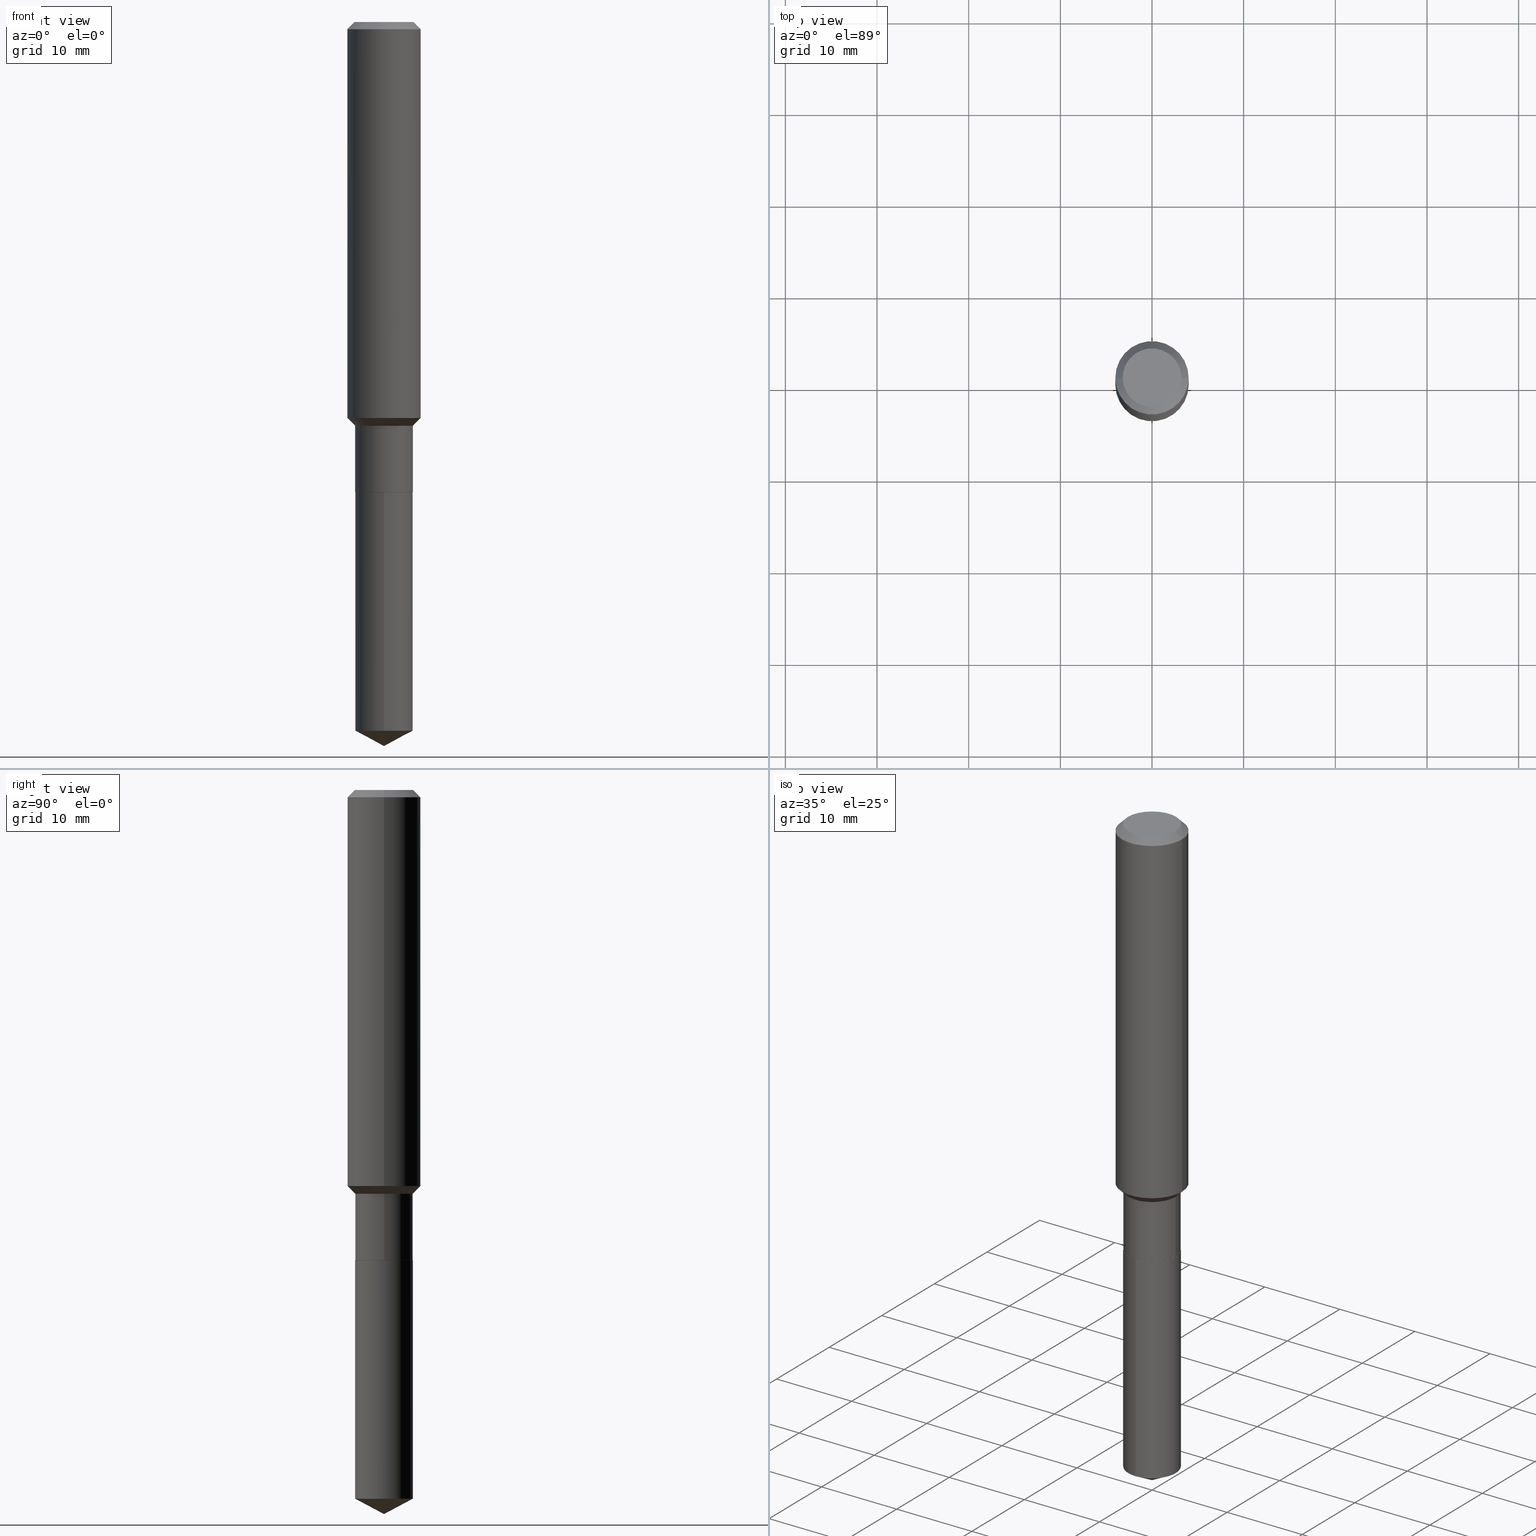
[diagram: canonical four-view strip — front | top / right | iso, engineering-drawing reading convention]
A machine part, canonical four-view strip (front | top / right | iso — engineering-drawing reading convention). The complete STEP part file that produces these views, byte-faithful:
ISO-10303-21;
HEADER;
FILE_DESCRIPTION (( 'STEP AP203' ),
    '1' );
FILE_NAME ('64633.STEP',
    '2024-04-24T18:30:29',
    ( '' ),
    ( '' ),
    'SwSTEP 2.0',
    'SolidWorks 2023',
    '' );
FILE_SCHEMA (( 'CONFIG_CONTROL_DESIGN' ));
ENDSEC;

DATA;
#1 = VECTOR ( 'NONE', #429, 39.37007874015748854 ) ;
#2 = CC_DESIGN_SECURITY_CLASSIFICATION ( #304, ( #251 ) ) ;
#3 = PERSON_AND_ORGANIZATION ( #315, #438 ) ;
#4 = EDGE_LOOP ( 'NONE', ( #136, #41, #195 ) ) ;
#5 = CARTESIAN_POINT ( 'NONE',  ( 4.937646066568409466E-29, -7.049649971258195757E-15, -2.019099999999999895 ) ) ;
#6 = ORIENTED_EDGE ( 'NONE', *, *, #278, .F. ) ;
#7 = PLANE ( 'NONE',  #177 ) ;
#8 = DIRECTION ( 'NONE',  ( -6.165590087286832874E-15, -0.8829475928589261002, 0.4694715627858920826 ) ) ;
#9 = CARTESIAN_POINT ( 'NONE',  ( 0.1260000000000000009, -1.027466422270894443E-15, 3.860086710919128072E-18 ) ) ;
#10 = AXIS2_PLACEMENT_3D ( 'NONE', #29, #425, #32 ) ;
#11 = VERTEX_POINT ( 'NONE', #271 ) ;
#12 = DIRECTION ( 'NONE',  ( -6.982962677686265922E-15, -1.000000000000000000, 4.406206441393973340E-15 ) ) ;
#13 = DIRECTION ( 'NONE',  ( -2.445468806185136597E-29, 3.491481338843145583E-15, 1.000000000000000000 ) ) ;
#14 = LINE ( 'NONE', #230, #53 ) ;
#15 = ORIENTED_EDGE ( 'NONE', *, *, #369, .T. ) ;
#16 = ORIENTED_EDGE ( 'NONE', *, *, #290, .T. ) ;
#17 = DIRECTION ( 'NONE',  ( 0.7071067811866320607, -2.468850131083142557E-15, 0.7071067811864629737 ) ) ;
#18 = DIRECTION ( 'NONE',  ( 1.000000000000000000, -6.982962677686265133E-15, 0.000000000000000000 ) ) ;
#19 = ORIENTED_EDGE ( 'NONE', *, *, #361, .F. ) ;
#20 = DIRECTION ( 'NONE',  ( 1.000000000000000000, -6.982962677686267499E-15, 4.876176775795936353E-29 ) ) ;
#21 = CARTESIAN_POINT ( 'NONE',  ( -0.1239999999999999991, 8.810729923425242242E-16, -6.099479511916082446E-30 ) ) ;
#22 = CC_DESIGN_APPROVAL ( #217, ( #251 ) ) ;
#23 = DIRECTION ( 'NONE',  ( -6.982962677686266711E-15, -1.000000000000000000, 3.541896320645563630E-15 ) ) ;
#24 = EDGE_CURVE ( 'NONE', #393, #180, #60, .T. ) ;
#25 = ADVANCED_FACE ( 'NONE', ( #378 ), #42, .T. ) ;
#26 = CARTESIAN_POINT ( 'NONE',  ( 4.938868800971501707E-29, -7.051395711927616472E-15, -2.019600000000000062 ) ) ;
#27 = EDGE_CURVE ( 'NONE', #77, #410, #321, .T. ) ;
#28 = CARTESIAN_POINT ( 'NONE',  ( 7.703226739483228723E-31, -1.099816621735597661E-16, -0.03150000000000019451 ) ) ;
#29 = CARTESIAN_POINT ( 'NONE',  ( -9.439721640706201686E-47, 1.347742071746726764E-32, 3.860086710912459732E-18 ) ) ;
#30 = EDGE_LOOP ( 'NONE', ( #63, #82, #411, #101 ) ) ;
#31 = APPROVAL ( #75, 'UNSPECIFIED' ) ;
#32 = DIRECTION ( 'NONE',  ( 1.000000000000000000, -6.982962677686265922E-15, 4.876281427513067258E-29 ) ) ;
#33 = VECTOR ( 'NONE', #94, 39.37007874015748143 ) ;
#34 = LOCAL_TIME ( 14, 30, 29.00000000000000000, #150 ) ;
#35 = ORIENTED_EDGE ( 'NONE', *, *, #56, .F. ) ;
#36 = CALENDAR_DATE ( 2024, 24, 4 ) ;
#37 = EDGE_LOOP ( 'NONE', ( #189, #474, #329, #299 ) ) ;
#38 = PERSON_AND_ORGANIZATION ( #315, #438 ) ;
#39 =( GEOMETRIC_REPRESENTATION_CONTEXT ( 3 ) GLOBAL_UNCERTAINTY_ASSIGNED_CONTEXT ( ( #357 ) ) GLOBAL_UNIT_ASSIGNED_CONTEXT ( ( #143, #446, #220 ) ) REPRESENTATION_CONTEXT ( 'NONE', 'WORKASPACE' ) );
#40 = CC_DESIGN_PERSON_AND_ORGANIZATION_ASSIGNMENT ( #3, #72, ( #304 ) ) ;
#41 = ORIENTED_EDGE ( 'NONE', *, *, #380, .T. ) ;
#42 = CYLINDRICAL_SURFACE ( 'NONE', #111, 0.1575000000000000844 ) ;
#43 = LINE ( 'NONE', #314, #445 ) ;
#44 = ADVANCED_FACE ( 'NONE', ( #268 ), #310, .T. ) ;
#45 = DIRECTION ( 'NONE',  ( 0.7071067811865493491, -2.468850131082275993E-15, 0.7071067811865457964 ) ) ;
#46 = CARTESIAN_POINT ( 'NONE',  ( 0.000000000000000000, 0.000000000000000000, 0.000000000000000000 ) ) ;
#47 = CIRCLE ( 'NONE', #487, 0.1239999999999999991 ) ;
#48 = CC_DESIGN_PERSON_AND_ORGANIZATION_ASSIGNMENT ( #156, #372, ( #251 ) ) ;
#49 = DIRECTION ( 'NONE',  ( -6.982962677686265922E-15, -1.000000000000000000, 4.406206441393973340E-15 ) ) ;
#50 = DIRECTION ( 'NONE',  ( -0.7071067811865451302, 2.468850131082231817E-15, -0.7071067811865499042 ) ) ;
#51 = DIRECTION ( 'NONE',  ( -2.445312113218767742E-29, 3.491705732089395604E-15, 1.000000000000000000 ) ) ;
#52 = DATE_TIME_ROLE ( 'creation_date' ) ;
#53 = VECTOR ( 'NONE', #50, 39.37007874015748143 ) ;
#54 = DIRECTION ( 'NONE',  ( -2.445468806185136597E-29, 3.491481338843145583E-15, 1.000000000000000000 ) ) ;
#55 = CARTESIAN_POINT ( 'NONE',  ( 8.810729923425734294E-16, 0.1239999999999929492, -2.019600000000000506 ) ) ;
#56 = EDGE_CURVE ( 'NONE', #11, #371, #353, .T. ) ;
#57 = DIRECTION ( 'NONE',  ( -2.445468806185136877E-29, 3.491481338843145188E-15, 1.000000000000000000 ) ) ;
#58 = CARTESIAN_POINT ( 'NONE',  ( -4.719860820353100843E-47, 6.738710358733633822E-33, 1.930043355456229866E-18 ) ) ;
#59 = FACE_OUTER_BOUND ( 'NONE', #424, .T. ) ;
#60 = CIRCLE ( 'NONE', #210, 0.1239999999999999991 ) ;
#61 = AXIS2_PLACEMENT_3D ( 'NONE', #342, #203, #73 ) ;
#62 = VECTOR ( 'NONE', #258, 39.37007874015748143 ) ;
#63 = ORIENTED_EDGE ( 'NONE', *, *, #89, .F. ) ;
#64 = EDGE_LOOP ( 'NONE', ( #312, #460, #214, #204 ) ) ;
#65 = ADVANCED_FACE ( 'NONE', ( #467 ), #388, .T. ) ;
#66 = LINE ( 'NONE', #224, #33 ) ;
#67 = APPROVAL_STATUS ( 'not_yet_approved' ) ;
#68 = DIRECTION ( 'NONE',  ( 1.000000000000000000, -6.982962677686265133E-15, 0.000000000000000000 ) ) ;
#69 = DATE_AND_TIME ( #263, #328 ) ;
#70 = DIRECTION ( 'NONE',  ( -2.445312113218767742E-29, 3.491705732089395604E-15, 1.000000000000000000 ) ) ;
#71 = ADVANCED_BREP_SHAPE_REPRESENTATION ( '64633', ( #368, #207, #323 ), #39 ) ;
#72 = PERSON_AND_ORGANIZATION_ROLE ( 'classification_officer' ) ;
#73 = DIRECTION ( 'NONE',  ( 1.000000000000000000, -6.982962677686265922E-15, 0.000000000000000000 ) ) ;
#74 = FACE_OUTER_BOUND ( 'NONE', #4, .T. ) ;
#75 = APPROVAL_STATUS ( 'not_yet_approved' ) ;
#76 = CARTESIAN_POINT ( 'NONE',  ( 7.444501947917535459E-29, -1.062923494742235287E-14, -3.044268030473976872 ) ) ;
#77 = VERTEX_POINT ( 'NONE', #250 ) ;
#78 = APPLICATION_CONTEXT ( 'configuration controlled 3d designs of mechanical parts and assemblies' ) ;
#79 = CLOSED_SHELL ( 'NONE', ( #436, #376, #259, #291, #362, #44, #162, #25, #196, #219, #223, #135 ) ) ;
#80 = DIRECTION ( 'NONE',  ( -2.445468806185136597E-29, 3.491481338843145583E-15, 1.000000000000000000 ) ) ;
#81 = AXIS2_PLACEMENT_3D ( 'NONE', #213, #363, #395 ) ;
#82 = ORIENTED_EDGE ( 'NONE', *, *, #27, .T. ) ;
#83 = DIRECTION ( 'NONE',  ( -2.445468806185136597E-29, 3.491481338843145583E-15, 1.000000000000000000 ) ) ;
#84 = LINE ( 'NONE', #421, #272 ) ;
#85 = COORDINATED_UNIVERSAL_TIME_OFFSET ( 5, 0, .BEHIND. ) ;
#86 = DIRECTION ( 'NONE',  ( -2.445312113218767742E-29, 3.491705732089395604E-15, 1.000000000000000000 ) ) ;
#87 = ORIENTED_EDGE ( 'NONE', *, *, #151, .T. ) ;
#88 = CIRCLE ( 'NONE', #399, 0.1239999999999999991 ) ;
#89 = EDGE_CURVE ( 'NONE', #77, #373, #140, .T. ) ;
#90 = APPLICATION_PROTOCOL_DEFINITION ( 'international standard', 'config_control_design', 1994, #78 ) ;
#91 = LINE ( 'NONE', #55, #112 ) ;
#92 = EDGE_CURVE ( 'NONE', #410, #235, #413, .T. ) ;
#93 = CIRCLE ( 'NONE', #374, 0.1575000000000000011 ) ;
#94 = DIRECTION ( 'NONE',  ( -2.445468806185136877E-29, 3.491481338843145188E-15, 1.000000000000000000 ) ) ;
#95 = VECTOR ( 'NONE', #57, 39.37007874015748143 ) ;
#96 = EDGE_CURVE ( 'NONE', #402, #180, #84, .T. ) ;
#97 = DIRECTION ( 'NONE',  ( 1.000000000000000000, -6.982962677686265922E-15, 0.000000000000000000 ) ) ;
#98 = ORIENTED_EDGE ( 'NONE', *, *, #172, .F. ) ;
#99 = ORIENTED_EDGE ( 'NONE', *, *, #361, .T. ) ;
#100 = PERSON_AND_ORGANIZATION_ROLE ( 'design_owner' ) ;
#101 = ORIENTED_EDGE ( 'NONE', *, *, #151, .F. ) ;
#102 = ORIENTED_EDGE ( 'NONE', *, *, #154, .F. ) ;
#103 = AXIS2_PLACEMENT_3D ( 'NONE', #124, #231, #68 ) ;
#104 = VERTEX_POINT ( 'NONE', #461 ) ;
#105 = CC_DESIGN_APPROVAL ( #292, ( #240 ) ) ;
#106 = ORIENTED_EDGE ( 'NONE', *, *, #443, .F. ) ;
#107 = EDGE_LOOP ( 'NONE', ( #6, #120 ) ) ;
#108 = ORIENTED_EDGE ( 'NONE', *, *, #369, .F. ) ;
#109 = DIRECTION ( 'NONE',  ( -2.445312113218767742E-29, 3.491705732089395604E-15, 1.000000000000000000 ) ) ;
#110 = APPROVAL_DATE_TIME ( #266, #217 ) ;
#111 = AXIS2_PLACEMENT_3D ( 'NONE', #199, #354, #20 ) ;
#112 = VECTOR ( 'NONE', #126, 39.37007874015748143 ) ;
#113 = DIRECTION ( 'NONE',  ( 1.000000000000000000, -6.982962677686267499E-15, 4.876176775795936353E-29 ) ) ;
#114 = DIRECTION ( 'NONE',  ( 2.445312113218767462E-29, -3.491705732089395604E-15, -1.000000000000000000 ) ) ;
#115 = DIRECTION ( 'NONE',  ( -1.000000000000000000, 6.982962677686265922E-15, 0.000000000000000000 ) ) ;
#116 = EDGE_CURVE ( 'NONE', #180, #393, #227, .T. ) ;
#117 = DIRECTION ( 'NONE',  ( -2.445312113218767742E-29, 3.491705732089395604E-15, 1.000000000000000000 ) ) ;
#118 = CONICAL_SURFACE ( 'NONE', #237, 0.1239999999999999575, 0.7853981633974508325 ) ;
#119 = CYLINDRICAL_SURFACE ( 'NONE', #147, 0.1575000000000000844 ) ;
#120 = ORIENTED_EDGE ( 'NONE', *, *, #27, .F. ) ;
#121 = LOCAL_TIME ( 14, 30, 29.00000000000000000, #201 ) ;
#122 = EDGE_LOOP ( 'NONE', ( #244, #253 ) ) ;
#123 = CC_DESIGN_PERSON_AND_ORGANIZATION_ASSIGNMENT ( #176, #100, ( #358 ) ) ;
#124 = CARTESIAN_POINT ( 'NONE',  ( 4.241421097447501822E-29, -6.055625234089552182E-15, -1.734400000000000164 ) ) ;
#125 = APPROVAL_DATE_TIME ( #184, #292 ) ;
#126 = DIRECTION ( 'NONE',  ( -2.445312113218767742E-29, 3.491705732089395604E-15, 1.000000000000000000 ) ) ;
#127 = DIRECTION ( 'NONE',  ( 1.000000000000000000, -6.982962677686265922E-15, 0.000000000000000000 ) ) ;
#128 = CARTESIAN_POINT ( 'NONE',  ( 4.159497892440299257E-29, -5.938660609238306710E-15, -1.700900000000000079 ) ) ;
#129 =( LENGTH_UNIT ( ) NAMED_UNIT ( * ) SI_UNIT ( $, .METRE. ) );
#130 = PLANE ( 'NONE',  #131 ) ;
#131 = AXIS2_PLACEMENT_3D ( 'NONE', #58, #232, #202 ) ;
#132 = LOCAL_TIME ( 14, 30, 29.00000000000000000, #404 ) ;
#133 = ADVANCED_FACE ( 'NONE', ( #74 ), #211, .T. ) ;
#134 = DIRECTION ( 'NONE',  ( -2.445468806185136877E-29, 3.491481338843145188E-15, 1.000000000000000000 ) ) ;
#135 = ADVANCED_FACE ( 'NONE', ( #277 ), #255, .T. ) ;
#136 = ORIENTED_EDGE ( 'NONE', *, *, #290, .F. ) ;
#137 = EDGE_CURVE ( 'NONE', #366, #402, #47, .T. ) ;
#138 = AXIS2_PLACEMENT_3D ( 'NONE', #163, #109, #12 ) ;
#139 = CONICAL_SURFACE ( 'NONE', #81, 74.04434902938348273, 1.082104136236486269 ) ;
#140 = LINE ( 'NONE', #398, #62 ) ;
#141 = DIRECTION ( 'NONE',  ( 1.000000000000000000, -6.982962677686269866E-15, 0.000000000000000000 ) ) ;
#142 = ORIENTED_EDGE ( 'NONE', *, *, #462, .T. ) ;
#143 =( CONVERSION_BASED_UNIT ( 'INCH', #285 ) LENGTH_UNIT ( ) NAMED_UNIT ( #483 ) );
#144 = CALENDAR_DATE ( 2024, 24, 4 ) ;
#145 = EDGE_CURVE ( 'NONE', #148, #377, #262, .T. ) ;
#146 = SECURITY_CLASSIFICATION_LEVEL ( 'unclassified' ) ;
#147 = AXIS2_PLACEMENT_3D ( 'NONE', #206, #455, #113 ) ;
#148 = VERTEX_POINT ( 'NONE', #193 ) ;
#149 = APPLICATION_CONTEXT ( 'configuration controlled 3d designs of mechanical parts and assemblies' ) ;
#150 = COORDINATED_UNIVERSAL_TIME_OFFSET ( 5, 0, .BEHIND. ) ;
#151 = EDGE_CURVE ( 'NONE', #373, #235, #157, .T. ) ;
#152 = CARTESIAN_POINT ( 'NONE',  ( 4.938868800971501707E-29, -7.051395711927616472E-15, -2.019600000000000062 ) ) ;
#153 = CYLINDRICAL_SURFACE ( 'NONE', #471, 0.1239999999999999991 ) ;
#154 = EDGE_CURVE ( 'NONE', #257, #104, #93, .T. ) ;
#155 = DIRECTION ( 'NONE',  ( -2.445468806185136597E-29, 3.491481338843145583E-15, 1.000000000000000000 ) ) ;
#156 = PERSON_AND_ORGANIZATION ( #315, #438 ) ;
#157 = CIRCLE ( 'NONE', #190, 0.1240000000000000130 ) ;
#158 = CARTESIAN_POINT ( 'NONE',  ( 7.703226739483228723E-31, -1.099816621735597661E-16, -0.03150000000000019451 ) ) ;
#159 = CARTESIAN_POINT ( 'NONE',  ( -8.866640425003587604E-28, 1.266092796264744180E-13, 36.25987874015748247 ) ) ;
#160 = FACE_OUTER_BOUND ( 'NONE', #469, .T. ) ;
#161 = ORIENTED_EDGE ( 'NONE', *, *, #173, .T. ) ;
#162 = ADVANCED_FACE ( 'NONE', ( #472 ), #470, .T. ) ;
#163 = CARTESIAN_POINT ( 'NONE',  ( 4.938868800971501707E-29, -7.051395711927616472E-15, -2.019600000000000062 ) ) ;
#164 = FACE_OUTER_BOUND ( 'NONE', #122, .T. ) ;
#165 = VECTOR ( 'NONE', #403, 39.37007874015748143 ) ;
#166 = CARTESIAN_POINT ( 'NONE',  ( -0.1239999999999999575, -5.671564610331350140E-15, -1.734400000000000164 ) ) ;
#167 = CARTESIAN_POINT ( 'NONE',  ( 4.938868800971501707E-29, -7.051395711927616472E-15, -2.019600000000000062 ) ) ;
#168 = DIRECTION ( 'NONE',  ( -2.445312113218767742E-29, 3.491705732089395604E-15, 1.000000000000000000 ) ) ;
#169 = DATE_AND_TIME ( #392, #344 ) ;
#170 = EDGE_LOOP ( 'NONE', ( #334, #99 ) ) ;
#171 = CARTESIAN_POINT ( 'NONE',  ( 0.1575000000000000011, -1.190510096822576026E-15, -0.03150000000000019451 ) ) ;
#172 = EDGE_CURVE ( 'NONE', #235, #373, #456, .T. ) ;
#173 = EDGE_CURVE ( 'NONE', #235, #148, #66, .T. ) ;
#174 = PRODUCT_DEFINITION_SHAPE ( 'NONE', 'NONE',  #240 ) ;
#175 = ORIENTED_EDGE ( 'NONE', *, *, #278, .T. ) ;
#176 = PERSON_AND_ORGANIZATION ( #315, #438 ) ;
#177 = AXIS2_PLACEMENT_3D ( 'NONE', #152, #301, #205 ) ;
#178 = CARTESIAN_POINT ( 'NONE',  ( 4.159497892440299257E-29, -5.938660609238306710E-15, -1.700900000000000079 ) ) ;
#179 = DIRECTION ( 'NONE',  ( -2.445468806185136597E-29, 3.491481338843145583E-15, 1.000000000000000000 ) ) ;
#180 = VERTEX_POINT ( 'NONE', #484 ) ;
#181 = VECTOR ( 'NONE', #17, 39.37007874015748143 ) ;
#182 = EDGE_LOOP ( 'NONE', ( #225, #274, #35, #447 ) ) ;
#183 = DIRECTION ( 'NONE',  ( -2.445468806185136597E-29, 3.491481338843145583E-15, 1.000000000000000000 ) ) ;
#184 = DATE_AND_TIME ( #36, #132 ) ;
#185 = CARTESIAN_POINT ( 'NONE',  ( 4.938868800971501707E-29, -7.051395711927616472E-15, -2.019600000000000062 ) ) ;
#186 = EDGE_CURVE ( 'NONE', #371, #11, #327, .T. ) ;
#187 = ORIENTED_EDGE ( 'NONE', *, *, #92, .F. ) ;
#188 = EDGE_CURVE ( 'NONE', #465, #309, #437, .T. ) ;
#189 = ORIENTED_EDGE ( 'NONE', *, *, #419, .F. ) ;
#190 = AXIS2_PLACEMENT_3D ( 'NONE', #5, #155, #466 ) ;
#191 = AXIS2_PLACEMENT_3D ( 'NONE', #311, #468, #234 ) ;
#192 = ORIENTED_EDGE ( 'NONE', *, *, #24, .F. ) ;
#193 = CARTESIAN_POINT ( 'NONE',  ( 0.1239999999999999575, -6.921512606122648718E-15, -1.734400000000000164 ) ) ;
#194 = ADVANCED_FACE ( 'NONE', ( #215 ), #400, .T. ) ;
#195 = ORIENTED_EDGE ( 'NONE', *, *, #137, .F. ) ;
#196 = ADVANCED_FACE ( 'NONE', ( #294 ), #407, .T. ) ;
#197 = LINE ( 'NONE', #302, #95 ) ;
#198 = SHAPE_DEFINITION_REPRESENTATION ( #174, #71 ) ;
#199 = CARTESIAN_POINT ( 'NONE',  ( 0.000000000000000000, 0.000000000000000000, 0.000000000000000000 ) ) ;
#200 = LINE ( 'NONE', #270, #1 ) ;
#201 = COORDINATED_UNIVERSAL_TIME_OFFSET ( 5, 0, .BEHIND. ) ;
#202 = DIRECTION ( 'NONE',  ( -1.000000000000000000, 6.982962677686265922E-15, -4.876176775795935793E-29 ) ) ;
#203 = DIRECTION ( 'NONE',  ( -2.445468806185136597E-29, 3.491481338843145583E-15, 1.000000000000000000 ) ) ;
#204 = ORIENTED_EDGE ( 'NONE', *, *, #96, .F. ) ;
#205 = DIRECTION ( 'NONE',  ( 1.000000000000000000, -6.982962677686265922E-15, 4.876176775795935793E-29 ) ) ;
#206 = CARTESIAN_POINT ( 'NONE',  ( 0.000000000000000000, 0.000000000000000000, 0.000000000000000000 ) ) ;
#207 = MANIFOLD_SOLID_BREP ( 'Body-Move/Copy2[2]', #79 ) ;
#208 = CARTESIAN_POINT ( 'NONE',  ( -0.1575000000000001954, -4.819555800416148317E-15, -1.700900000000000079 ) ) ;
#209 = CARTESIAN_POINT ( 'NONE',  ( 4.241421097447501822E-29, -6.055625234089552182E-15, -1.734400000000000164 ) ) ;
#210 = AXIS2_PLACEMENT_3D ( 'NONE', #185, #332, #229 ) ;
#211 = CONICAL_SURFACE ( 'NONE', #313, 74.04434902938348273, 1.082104136236486269 ) ;
#212 = AXIS2_PLACEMENT_3D ( 'NONE', #158, #80, #305 ) ;
#213 = CARTESIAN_POINT ( 'NONE',  ( -8.866640425003587604E-28, 1.266092796264744180E-13, 36.25987874015748247 ) ) ;
#214 = ORIENTED_EDGE ( 'NONE', *, *, #116, .F. ) ;
#215 = FACE_OUTER_BOUND ( 'NONE', #64, .T. ) ;
#216 = AXIS2_PLACEMENT_3D ( 'NONE', #420, #114, #426 ) ;
#217 = APPROVAL ( #67, 'UNSPECIFIED' ) ;
#218 = CARTESIAN_POINT ( 'NONE',  ( 4.938868800971501707E-29, -7.051395711927616472E-15, -2.019600000000000062 ) ) ;
#219 = ADVANCED_FACE ( 'NONE', ( #482 ), #130, .F. ) ;
#220 =( NAMED_UNIT ( * ) SI_UNIT ( $, .STERADIAN. ) SOLID_ANGLE_UNIT ( ) );
#221 = ORIENTED_EDGE ( 'NONE', *, *, #252, .T. ) ;
#222 = ORIENTED_EDGE ( 'NONE', *, *, #172, .T. ) ;
#223 = ADVANCED_FACE ( 'NONE', ( #339 ), #7, .F. ) ;
#224 = CARTESIAN_POINT ( 'NONE',  ( 0.1239999999999999991, -8.658873720330970287E-16, 6.046459201986959935E-30 ) ) ;
#225 = ORIENTED_EDGE ( 'NONE', *, *, #145, .T. ) ;
#226 = APPROVAL_ROLE ( '' ) ;
#227 = CIRCLE ( 'NONE', #138, 0.1239999999999999991 ) ;
#228 = EDGE_LOOP ( 'NONE', ( #222, #221, #490, #464 ) ) ;
#229 = DIRECTION ( 'NONE',  ( -6.982962677686265922E-15, -1.000000000000000000, 4.406206441393973340E-15 ) ) ;
#230 = CARTESIAN_POINT ( 'NONE',  ( -0.1575000000000000011, 9.898349595620272334E-16, -0.03150000000000019451 ) ) ;
#231 = DIRECTION ( 'NONE',  ( -2.445468806185136597E-29, 3.491481338843145583E-15, 1.000000000000000000 ) ) ;
#232 = DIRECTION ( 'NONE',  ( 2.438088387897960049E-29, -3.491481338843145188E-15, -1.000000000000000000 ) ) ;
#233 = FACE_OUTER_BOUND ( 'NONE', #182, .T. ) ;
#234 = DIRECTION ( 'NONE',  ( 1.000000000000000000, -6.982962677686265133E-15, 0.000000000000000000 ) ) ;
#235 = VERTEX_POINT ( 'NONE', #242 ) ;
#236 = DIRECTION ( 'NONE',  ( -2.445468806185136597E-29, 3.491481338843145583E-15, 1.000000000000000000 ) ) ;
#237 = AXIS2_PLACEMENT_3D ( 'NONE', #422, #238, #18 ) ;
#238 = DIRECTION ( 'NONE',  ( -2.445468806185136597E-29, 3.491481338843145583E-15, 1.000000000000000000 ) ) ;
#239 = ORIENTED_EDGE ( 'NONE', *, *, #96, .T. ) ;
#240 = PRODUCT_DEFINITION ( 'UNKNOWN', '', #251, #284 ) ;
#241 = DIRECTION ( 'NONE',  ( 1.000000000000000000, -6.982962677686266711E-15, 4.876176775795935232E-29 ) ) ;
#242 = CARTESIAN_POINT ( 'NONE',  ( 0.1240000000000000130, -7.915537343291293082E-15, -2.019099999999999895 ) ) ;
#243 = FACE_OUTER_BOUND ( 'NONE', #409, .T. ) ;
#244 = ORIENTED_EDGE ( 'NONE', *, *, #116, .T. ) ;
#245 = DIRECTION ( 'NONE',  ( -6.982962677686265922E-15, -1.000000000000000000, 4.406206441393973340E-15 ) ) ;
#246 = EDGE_CURVE ( 'NONE', #377, #371, #391, .T. ) ;
#247 = DIRECTION ( 'NONE',  ( 0.000000000000000000, 0.000000000000000000, 1.000000000000000000 ) ) ;
#248 = AXIS2_PLACEMENT_3D ( 'NONE', #26, #317, #439 ) ;
#249 = LINE ( 'NONE', #441, #457 ) ;
#250 = CARTESIAN_POINT ( 'NONE',  ( -0.1234999999999999987, -6.171226206089782734E-15, -2.019600000000000062 ) ) ;
#251 = PRODUCT_DEFINITION_FORMATION_WITH_SPECIFIED_SOURCE ( 'ANY', '', #358, .NOT_KNOWN. ) ;
#252 = EDGE_CURVE ( 'NONE', #373, #377, #381, .T. ) ;
#253 = ORIENTED_EDGE ( 'NONE', *, *, #24, .T. ) ;
#254 = APPROVAL_ROLE ( '' ) ;
#255 = CONICAL_SURFACE ( 'NONE', #479, 0.1234999999999999987, 0.7853981633975678500 ) ;
#256 = ORIENTED_EDGE ( 'NONE', *, *, #434, .F. ) ;
#257 = VERTEX_POINT ( 'NONE', #387 ) ;
#258 = DIRECTION ( 'NONE',  ( -0.7071067811866320607, 7.493145998870660238E-15, 0.7071067811864629737 ) ) ;
#259 = ADVANCED_FACE ( 'NONE', ( #463 ), #119, .T. ) ;
#260 = EDGE_LOOP ( 'NONE', ( #401, #338, #15, #432 ) ) ;
#261 = CARTESIAN_POINT ( 'NONE',  ( -8.658873720330223828E-16, -0.1240000000000106156, -3.044268030473976427 ) ) ;
#262 = CIRCLE ( 'NONE', #365, 0.1239999999999999575 ) ;
#263 = CALENDAR_DATE ( 2024, 24, 4 ) ;
#264 = AXIS2_PLACEMENT_3D ( 'NONE', #383, #83, #348 ) ;
#265 = PLANE ( 'NONE',  #216 ) ;
#266 = DATE_AND_TIME ( #144, #121 ) ;
#267 = CARTESIAN_POINT ( 'NONE',  ( 0.1239999999999999575, -6.921512606122648718E-15, -1.734400000000000164 ) ) ;
#268 = FACE_OUTER_BOUND ( 'NONE', #451, .T. ) ;
#269 = EDGE_CURVE ( 'NONE', #148, #11, #459, .T. ) ;
#270 = CARTESIAN_POINT ( 'NONE',  ( 7.606048198673468598E-29, -1.085899679874418524E-14, -3.110199999999999854 ) ) ;
#271 = CARTESIAN_POINT ( 'NONE',  ( 0.1575000000000001954, -7.038477230973894979E-15, -1.700900000000000079 ) ) ;
#272 = VECTOR ( 'NONE', #458, 39.37007874015748143 ) ;
#273 = DIRECTION ( 'NONE',  ( -2.445468806185136877E-29, 3.491481338843145188E-15, 1.000000000000000000 ) ) ;
#274 = ORIENTED_EDGE ( 'NONE', *, *, #246, .T. ) ;
#275 = CARTESIAN_POINT ( 'NONE',  ( 0.000000000000000000, 0.000000000000000000, 0.000000000000000000 ) ) ;
#276 = PERSON_AND_ORGANIZATION ( #315, #438 ) ;
#277 = FACE_OUTER_BOUND ( 'NONE', #30, .T. ) ;
#278 = EDGE_CURVE ( 'NONE', #410, #77, #427, .T. ) ;
#279 = CARTESIAN_POINT ( 'NONE',  ( 7.605409734533011841E-29, -1.085990316794443737E-14, -3.110199999999999854 ) ) ;
#280 = ORIENTED_EDGE ( 'NONE', *, *, #269, .T. ) ;
#281 = ORIENTED_EDGE ( 'NONE', *, *, #186, .F. ) ;
#282 = DIRECTION ( 'NONE',  ( 1.000000000000000000, 0.000000000000000000, 0.000000000000000000 ) ) ;
#283 = APPROVAL_PERSON_ORGANIZATION ( #481, #292, #254 ) ;
#284 = DESIGN_CONTEXT ( 'detailed design', #149, 'design' ) ;
#285 = LENGTH_MEASURE_WITH_UNIT ( LENGTH_MEASURE( 0.02539999999999999897 ), #129 );
#286 = CC_DESIGN_PERSON_AND_ORGANIZATION_ASSIGNMENT ( #276, #431, ( #240 ) ) ;
#287 = AXIS2_PLACEMENT_3D ( 'NONE', #218, #168, #406 ) ;
#288 = ADVANCED_FACE ( 'NONE', ( #164 ), #265, .F. ) ;
#289 = CONICAL_SURFACE ( 'NONE', #296, 0.1575000000000000011, 0.7853981633974449483 ) ;
#290 = EDGE_CURVE ( 'NONE', #449, #366, #200, .T. ) ;
#291 = ADVANCED_FACE ( 'NONE', ( #233 ), #118, .T. ) ;
#292 = APPROVAL ( #330, 'UNSPECIFIED' ) ;
#293 = CARTESIAN_POINT ( 'NONE',  ( 4.937646066568409466E-29, -7.049649971258195757E-15, -2.019099999999999895 ) ) ;
#294 = FACE_OUTER_BOUND ( 'NONE', #260, .T. ) ;
#295 = VECTOR ( 'NONE', #273, 39.37007874015748143 ) ;
#296 = AXIS2_PLACEMENT_3D ( 'NONE', #307, #340, #115 ) ;
#297 = ORIENTED_EDGE ( 'NONE', *, *, #246, .F. ) ;
#298 = DATE_TIME_ROLE ( 'classification_date' ) ;
#299 = ORIENTED_EDGE ( 'NONE', *, *, #320, .F. ) ;
#300 = CALENDAR_DATE ( 2024, 24, 4 ) ;
#301 = DIRECTION ( 'NONE',  ( -2.438088387897960049E-29, 3.491481338843145188E-15, 1.000000000000000000 ) ) ;
#302 = CARTESIAN_POINT ( 'NONE',  ( -0.1575000000000000844, 1.119104808822158392E-15, -7.747322767151481189E-30 ) ) ;
#303 = AXIS2_PLACEMENT_3D ( 'NONE', #386, #117, #430 ) ;
#304 = SECURITY_CLASSIFICATION ( '', '', #146 ) ;
#305 = DIRECTION ( 'NONE',  ( 1.000000000000000000, -6.982962677686265922E-15, 0.000000000000000000 ) ) ;
#306 = ORIENTED_EDGE ( 'NONE', *, *, #350, .T. ) ;
#307 = CARTESIAN_POINT ( 'NONE',  ( 7.703226739483228723E-31, -1.099816621735597661E-16, -0.03150000000000019451 ) ) ;
#308 = EDGE_LOOP ( 'NONE', ( #318, #440, #102, #256 ) ) ;
#309 = VERTEX_POINT ( 'NONE', #9 ) ;
#310 = CYLINDRICAL_SURFACE ( 'NONE', #343, 0.1239999999999999991 ) ;
#311 = CARTESIAN_POINT ( 'NONE',  ( 4.241421097447501822E-29, -6.055625234089552182E-15, -1.734400000000000164 ) ) ;
#312 = ORIENTED_EDGE ( 'NONE', *, *, #349, .T. ) ;
#313 = AXIS2_PLACEMENT_3D ( 'NONE', #159, #51, #23 ) ;
#314 = CARTESIAN_POINT ( 'NONE',  ( 7.605409734533011841E-29, -1.085990316794443737E-14, -3.110199999999999854 ) ) ;
#315 = PERSON ( 'UNSPECIFIED', 'UNSPECIFIED', 'UNSPECIFIED', ('UNSPECIFIED'), ('UNSPECIFIED'), ('UNSPECIFIED') ) ;
#316 = DIRECTION ( 'NONE',  ( -2.445468806185136597E-29, 3.491481338843145583E-15, 1.000000000000000000 ) ) ;
#317 = DIRECTION ( 'NONE',  ( -2.445468806185136597E-29, 3.491481338843145583E-15, 1.000000000000000000 ) ) ;
#318 = ORIENTED_EDGE ( 'NONE', *, *, #56, .T. ) ;
#319 = CARTESIAN_POINT ( 'NONE',  ( -0.1260000000000000009, 9.348441284752484904E-16, 3.860086710906114178E-18 ) ) ;
#320 = EDGE_CURVE ( 'NONE', #104, #257, #337, .T. ) ;
#321 = CIRCLE ( 'NONE', #336, 0.1234999999999999987 ) ;
#322 = APPLICATION_PROTOCOL_DEFINITION ( 'international standard', 'config_control_design', 1994, #149 ) ;
#323 = AXIS2_PLACEMENT_3D ( 'NONE', #476, #247, #282 ) ;
#324 = DIRECTION ( 'NONE',  ( 2.445468806185136597E-29, -3.491481338843145583E-15, -1.000000000000000000 ) ) ;
#325 = ORIENTED_EDGE ( 'NONE', *, *, #252, .F. ) ;
#326 = DIRECTION ( 'NONE',  ( -1.000000000000000000, 6.982962677686265922E-15, 0.000000000000000000 ) ) ;
#327 = CIRCLE ( 'NONE', #394, 0.1575000000000001954 ) ;
#328 = LOCAL_TIME ( 14, 30, 29.00000000000000000, #489 ) ;
#329 = ORIENTED_EDGE ( 'NONE', *, *, #434, .T. ) ;
#330 = APPROVAL_STATUS ( 'not_yet_approved' ) ;
#331 = ORIENTED_EDGE ( 'NONE', *, *, #137, .T. ) ;
#332 = DIRECTION ( 'NONE',  ( -2.445312113218767742E-29, 3.491705732089395604E-15, 1.000000000000000000 ) ) ;
#333 = LINE ( 'NONE', #171, #417 ) ;
#334 = ORIENTED_EDGE ( 'NONE', *, *, #188, .T. ) ;
#335 = EDGE_LOOP ( 'NONE', ( #106, #331, #239, #192 ) ) ;
#336 = AXIS2_PLACEMENT_3D ( 'NONE', #435, #54, #347 ) ;
#337 = CIRCLE ( 'NONE', #212, 0.1575000000000000011 ) ;
#338 = ORIENTED_EDGE ( 'NONE', *, *, #188, .F. ) ;
#339 = FACE_OUTER_BOUND ( 'NONE', #107, .T. ) ;
#340 = DIRECTION ( 'NONE',  ( 2.445468806185136597E-29, -3.491481338843145583E-15, -1.000000000000000000 ) ) ;
#341 = DATE_AND_TIME ( #300, #34 ) ;
#342 = CARTESIAN_POINT ( 'NONE',  ( 4.938868800971501707E-29, -7.051395711927616472E-15, -2.019600000000000062 ) ) ;
#343 = AXIS2_PLACEMENT_3D ( 'NONE', #275, #13, #477 ) ;
#344 = LOCAL_TIME ( 14, 30, 29.00000000000000000, #85 ) ;
#345 = DIRECTION ( 'NONE',  ( -2.445468806185136597E-29, 3.491481338843145583E-15, 1.000000000000000000 ) ) ;
#346 = ORIENTED_EDGE ( 'NONE', *, *, #380, .F. ) ;
#347 = DIRECTION ( 'NONE',  ( 1.000000000000000000, -6.982962677686265922E-15, 0.000000000000000000 ) ) ;
#348 = DIRECTION ( 'NONE',  ( 1.000000000000000000, -6.982962677686265922E-15, 4.876281427513067258E-29 ) ) ;
#349 = EDGE_CURVE ( 'NONE', #402, #366, #88, .T. ) ;
#350 = EDGE_CURVE ( 'NONE', #377, #148, #385, .T. ) ;
#351 = FACE_OUTER_BOUND ( 'NONE', #228, .T. ) ;
#352 = DIRECTION ( 'NONE',  ( -2.445468806185136597E-29, 3.491481338843145583E-15, 1.000000000000000000 ) ) ;
#353 = CIRCLE ( 'NONE', #416, 0.1575000000000001954 ) ;
#354 = DIRECTION ( 'NONE',  ( -2.445468806185136597E-29, 3.491481338843145583E-15, 1.000000000000000000 ) ) ;
#355 = CC_DESIGN_APPROVAL ( #31, ( #304 ) ) ;
#356 = PERSON_AND_ORGANIZATION ( #315, #438 ) ;
#357 = UNCERTAINTY_MEASURE_WITH_UNIT (LENGTH_MEASURE( 1.000000000000000082E-05 ), #143, 'distance_accuracy_value', 'NONE');
#358 = PRODUCT ( '64633', '64633', '', ( #397 ) ) ;
#359 = CLOSED_SHELL ( 'NONE', ( #194, #454, #133, #65, #288 ) ) ;
#360 = VECTOR ( 'NONE', #45, 39.37007874015748143 ) ;
#361 = EDGE_CURVE ( 'NONE', #309, #465, #488, .T. ) ;
#362 = ADVANCED_FACE ( 'NONE', ( #351 ), #153, .T. ) ;
#363 = DIRECTION ( 'NONE',  ( -2.445312113218767742E-29, 3.491705732089395604E-15, 1.000000000000000000 ) ) ;
#364 = ORIENTED_EDGE ( 'NONE', *, *, #349, .F. ) ;
#365 = AXIS2_PLACEMENT_3D ( 'NONE', #209, #352, #453 ) ;
#366 = VERTEX_POINT ( 'NONE', #390 ) ;
#367 = DIRECTION ( 'NONE',  ( 0.7071067811865451302, -7.319954787623248157E-15, -0.7071067811865499042 ) ) ;
#368 = MANIFOLD_SOLID_BREP ( 'Body-Move/Copy2[1]', #359 ) ;
#369 = EDGE_CURVE ( 'NONE', #465, #104, #14, .T. ) ;
#370 = ORIENTED_EDGE ( 'NONE', *, *, #89, .T. ) ;
#371 = VERTEX_POINT ( 'NONE', #208 ) ;
#372 = PERSON_AND_ORGANIZATION_ROLE ( 'creator' ) ;
#373 = VERTEX_POINT ( 'NONE', #379 ) ;
#374 = AXIS2_PLACEMENT_3D ( 'NONE', #28, #428, #127 ) ;
#375 = CONICAL_SURFACE ( 'NONE', #248, 0.1234999999999999987, 0.7853981633975678500 ) ;
#376 = ADVANCED_FACE ( 'NONE', ( #160 ), #289, .T. ) ;
#377 = VERTEX_POINT ( 'NONE', #166 ) ;
#378 = FACE_OUTER_BOUND ( 'NONE', #37, .T. ) ;
#379 = CARTESIAN_POINT ( 'NONE',  ( -0.1240000000000000269, -5.671564610331350140E-15, -2.019099999999999895 ) ) ;
#380 = EDGE_CURVE ( 'NONE', #449, #402, #43, .T. ) ;
#381 = LINE ( 'NONE', #21, #295 ) ;
#382 = DIRECTION ( 'NONE',  ( 1.000000000000000000, -6.982962677686265922E-15, 0.000000000000000000 ) ) ;
#383 = CARTESIAN_POINT ( 'NONE',  ( -9.439721640706201686E-47, 1.347742071746726764E-32, 3.860086710912459732E-18 ) ) ;
#384 = AXIS2_PLACEMENT_3D ( 'NONE', #442, #324, #326 ) ;
#385 = CIRCLE ( 'NONE', #191, 0.1239999999999999575 ) ;
#386 = CARTESIAN_POINT ( 'NONE',  ( 4.938868800971501707E-29, -7.051395711927616472E-15, -2.019600000000000062 ) ) ;
#387 = CARTESIAN_POINT ( 'NONE',  ( 0.1575000000000000011, -1.209798283909146741E-15, -0.03150000000000019451 ) ) ;
#388 = CYLINDRICAL_SURFACE ( 'NONE', #303, 0.1239999999999999991 ) ;
#389 = CC_DESIGN_PERSON_AND_ORGANIZATION_ASSIGNMENT ( #38, #412, ( #251 ) ) ;
#390 = CARTESIAN_POINT ( 'NONE',  ( 8.810729923425982785E-16, 0.1239999999999893548, -3.044268030473977760 ) ) ;
#391 = LINE ( 'NONE', #486, #165 ) ;
#392 = CALENDAR_DATE ( 2024, 24, 4 ) ;
#393 = VERTEX_POINT ( 'NONE', #473 ) ;
#394 = AXIS2_PLACEMENT_3D ( 'NONE', #178, #183, #97 ) ;
#395 = DIRECTION ( 'NONE',  ( -6.982962677686266711E-15, -1.000000000000000000, 3.541896320645563630E-15 ) ) ;
#396 = ORIENTED_EDGE ( 'NONE', *, *, #350, .F. ) ;
#397 = MECHANICAL_CONTEXT ( 'NONE', #78, 'mechanical' ) ;
#398 = CARTESIAN_POINT ( 'NONE',  ( -0.1234999999999999987, -6.173875433263893935E-15, -2.019600000000000062 ) ) ;
#399 = AXIS2_PLACEMENT_3D ( 'NONE', #76, #70, #49 ) ;
#400 = CYLINDRICAL_SURFACE ( 'NONE', #287, 0.1239999999999999991 ) ;
#401 = ORIENTED_EDGE ( 'NONE', *, *, #462, .F. ) ;
#402 = VERTEX_POINT ( 'NONE', #261 ) ;
#403 = DIRECTION ( 'NONE',  ( -0.7071067811865493491, 7.493145998870360471E-15, 0.7071067811865457964 ) ) ;
#404 = COORDINATED_UNIVERSAL_TIME_OFFSET ( 5, 0, .BEHIND. ) ;
#405 = EDGE_LOOP ( 'NONE', ( #297, #306, #280, #281 ) ) ;
#406 = DIRECTION ( 'NONE',  ( -6.982962677686265922E-15, -1.000000000000000000, 4.406206441393973340E-15 ) ) ;
#407 = CONICAL_SURFACE ( 'NONE', #384, 0.1575000000000000011, 0.7853981633974449483 ) ;
#408 = APPROVAL_PERSON_ORGANIZATION ( #414, #31, #418 ) ;
#409 = EDGE_LOOP ( 'NONE', ( #346, #16, #364 ) ) ;
#410 = VERTEX_POINT ( 'NONE', #415 ) ;
#411 = ORIENTED_EDGE ( 'NONE', *, *, #92, .T. ) ;
#412 = PERSON_AND_ORGANIZATION_ROLE ( 'design_supplier' ) ;
#413 = LINE ( 'NONE', #478, #181 ) ;
#414 = PERSON_AND_ORGANIZATION ( #315, #438 ) ;
#415 = CARTESIAN_POINT ( 'NONE',  ( 0.1234999999999999987, -7.913791602621870789E-15, -2.019600000000000062 ) ) ;
#416 = AXIS2_PLACEMENT_3D ( 'NONE', #128, #236, #382 ) ;
#417 = VECTOR ( 'NONE', #367, 39.37007874015748143 ) ;
#418 = APPROVAL_ROLE ( '' ) ;
#419 = EDGE_CURVE ( 'NONE', #371, #104, #197, .T. ) ;
#420 = CARTESIAN_POINT ( 'NONE',  ( 4.938868800971501707E-29, -7.051395711927616472E-15, -2.019600000000000062 ) ) ;
#421 = CARTESIAN_POINT ( 'NONE',  ( -8.658873720330475277E-16, -0.1240000000000070490, -2.019599999999999618 ) ) ;
#422 = CARTESIAN_POINT ( 'NONE',  ( 4.241421097447501822E-29, -6.055625234089552182E-15, -1.734400000000000164 ) ) ;
#423 = PRODUCT_RELATED_PRODUCT_CATEGORY ( 'detail', '', ( #358 ) ) ;
#424 = EDGE_LOOP ( 'NONE', ( #175, #370, #98, #187 ) ) ;
#425 = DIRECTION ( 'NONE',  ( -2.445468806185136597E-29, 3.491481338843145583E-15, 1.000000000000000000 ) ) ;
#426 = DIRECTION ( 'NONE',  ( 6.982962677686265922E-15, 1.000000000000000000, -3.491705732089395604E-15 ) ) ;
#427 = CIRCLE ( 'NONE', #61, 0.1234999999999999987 ) ;
#428 = DIRECTION ( 'NONE',  ( -2.445468806185136597E-29, 3.491481338843145583E-15, 1.000000000000000000 ) ) ;
#429 = DIRECTION ( 'NONE',  ( 6.273719981627763710E-15, 0.8829475928589293199, 0.4694715627858859208 ) ) ;
#430 = DIRECTION ( 'NONE',  ( -6.982962677686265922E-15, -1.000000000000000000, 4.406206441393973340E-15 ) ) ;
#431 = PERSON_AND_ORGANIZATION_ROLE ( 'creator' ) ;
#432 = ORIENTED_EDGE ( 'NONE', *, *, #320, .T. ) ;
#433 = CARTESIAN_POINT ( 'NONE',  ( 7.444501947917535459E-29, -1.062923494742235287E-14, -3.044268030473976872 ) ) ;
#434 = EDGE_CURVE ( 'NONE', #11, #257, #249, .T. ) ;
#435 = CARTESIAN_POINT ( 'NONE',  ( 4.938868800971501707E-29, -7.051395711927616472E-15, -2.019600000000000062 ) ) ;
#436 = ADVANCED_FACE ( 'NONE', ( #59 ), #375, .T. ) ;
#437 = CIRCLE ( 'NONE', #10, 0.1260000000000000009 ) ;
#438 = ORGANIZATION ( 'UNSPECIFIED', 'UNSPECIFIED', '' ) ;
#439 = DIRECTION ( 'NONE',  ( 1.000000000000000000, -6.982962677686265922E-15, 0.000000000000000000 ) ) ;
#440 = ORIENTED_EDGE ( 'NONE', *, *, #419, .T. ) ;
#441 = CARTESIAN_POINT ( 'NONE',  ( 0.1575000000000000844, -1.099816621735587677E-15, 7.679978421878603638E-30 ) ) ;
#442 = CARTESIAN_POINT ( 'NONE',  ( 7.703226739483228723E-31, -1.099816621735597661E-16, -0.03150000000000019451 ) ) ;
#443 = EDGE_CURVE ( 'NONE', #366, #393, #91, .T. ) ;
#444 = CC_DESIGN_DATE_AND_TIME_ASSIGNMENT ( #341, #298, ( #304 ) ) ;
#445 = VECTOR ( 'NONE', #8, 39.37007874015748854 ) ;
#446 =( NAMED_UNIT ( * ) PLANE_ANGLE_UNIT ( ) SI_UNIT ( $, .RADIAN. ) );
#447 = ORIENTED_EDGE ( 'NONE', *, *, #269, .F. ) ;
#448 = APPROVAL_DATE_TIME ( #69, #31 ) ;
#449 = VERTEX_POINT ( 'NONE', #279 ) ;
#450 = AXIS2_PLACEMENT_3D ( 'NONE', #293, #179, #141 ) ;
#451 = EDGE_LOOP ( 'NONE', ( #325, #87, #161, #396 ) ) ;
#452 = ORIENTED_EDGE ( 'NONE', *, *, #154, .T. ) ;
#453 = DIRECTION ( 'NONE',  ( 1.000000000000000000, -6.982962677686265133E-15, 0.000000000000000000 ) ) ;
#454 = ADVANCED_FACE ( 'NONE', ( #243 ), #139, .T. ) ;
#455 = DIRECTION ( 'NONE',  ( -2.445468806185136597E-29, 3.491481338843145583E-15, 1.000000000000000000 ) ) ;
#456 = CIRCLE ( 'NONE', #450, 0.1240000000000000130 ) ;
#457 = VECTOR ( 'NONE', #134, 39.37007874015748143 ) ;
#458 = DIRECTION ( 'NONE',  ( -2.445312113218767742E-29, 3.491705732089395604E-15, 1.000000000000000000 ) ) ;
#459 = LINE ( 'NONE', #267, #360 ) ;
#460 = ORIENTED_EDGE ( 'NONE', *, *, #443, .T. ) ;
#461 = CARTESIAN_POINT ( 'NONE',  ( -0.1575000000000000011, -1.905216326883773903E-15, -0.03150000000000019451 ) ) ;
#462 = EDGE_CURVE ( 'NONE', #309, #257, #333, .T. ) ;
#463 = FACE_OUTER_BOUND ( 'NONE', #308, .T. ) ;
#464 = ORIENTED_EDGE ( 'NONE', *, *, #173, .F. ) ;
#465 = VERTEX_POINT ( 'NONE', #319 ) ;
#466 = DIRECTION ( 'NONE',  ( 1.000000000000000000, -6.982962677686269866E-15, 0.000000000000000000 ) ) ;
#467 = FACE_OUTER_BOUND ( 'NONE', #335, .T. ) ;
#468 = DIRECTION ( 'NONE',  ( -2.445468806185136597E-29, 3.491481338843145583E-15, 1.000000000000000000 ) ) ;
#469 = EDGE_LOOP ( 'NONE', ( #19, #142, #452, #108 ) ) ;
#470 = CONICAL_SURFACE ( 'NONE', #103, 0.1239999999999999575, 0.7853981633974508325 ) ;
#471 = AXIS2_PLACEMENT_3D ( 'NONE', #46, #345, #241 ) ;
#472 = FACE_OUTER_BOUND ( 'NONE', #405, .T. ) ;
#473 = CARTESIAN_POINT ( 'NONE',  ( 8.810729923425987715E-16, 0.1239999999999929492, -2.019600000000000506 ) ) ;
#474 = ORIENTED_EDGE ( 'NONE', *, *, #186, .T. ) ;
#475 = DIRECTION ( 'NONE',  ( 1.000000000000000000, -6.982962677686265922E-15, 0.000000000000000000 ) ) ;
#476 = CARTESIAN_POINT ( 'NONE',  ( 0.000000000000000000, 0.000000000000000000, 0.000000000000000000 ) ) ;
#477 = DIRECTION ( 'NONE',  ( 1.000000000000000000, -6.982962677686266711E-15, 4.876176775795935232E-29 ) ) ;
#478 = CARTESIAN_POINT ( 'NONE',  ( 0.1234999999999999987, -7.913791602621870789E-15, -2.019600000000000062 ) ) ;
#479 = AXIS2_PLACEMENT_3D ( 'NONE', #167, #316, #475 ) ;
#480 = APPROVAL_PERSON_ORGANIZATION ( #356, #217, #226 ) ;
#481 = PERSON_AND_ORGANIZATION ( #315, #438 ) ;
#482 = FACE_OUTER_BOUND ( 'NONE', #170, .T. ) ;
#483 = DIMENSIONAL_EXPONENTS ( 1.000000000000000000, 0.000000000000000000, 0.000000000000000000, 0.000000000000000000, 0.000000000000000000, 0.000000000000000000, 0.000000000000000000 ) ;
#484 = CARTESIAN_POINT ( 'NONE',  ( -8.658873720330475277E-16, -0.1240000000000070490, -2.019599999999999618 ) ) ;
#485 = CC_DESIGN_DATE_AND_TIME_ASSIGNMENT ( #169, #52, ( #240 ) ) ;
#486 = CARTESIAN_POINT ( 'NONE',  ( -0.1239999999999999575, -5.174552241747027958E-15, -1.734400000000000164 ) ) ;
#487 = AXIS2_PLACEMENT_3D ( 'NONE', #433, #86, #245 ) ;
#488 = CIRCLE ( 'NONE', #264, 0.1260000000000000009 ) ;
#489 = COORDINATED_UNIVERSAL_TIME_OFFSET ( 5, 0, .BEHIND. ) ;
#490 = ORIENTED_EDGE ( 'NONE', *, *, #145, .F. ) ;
ENDSEC;
END-ISO-10303-21;
